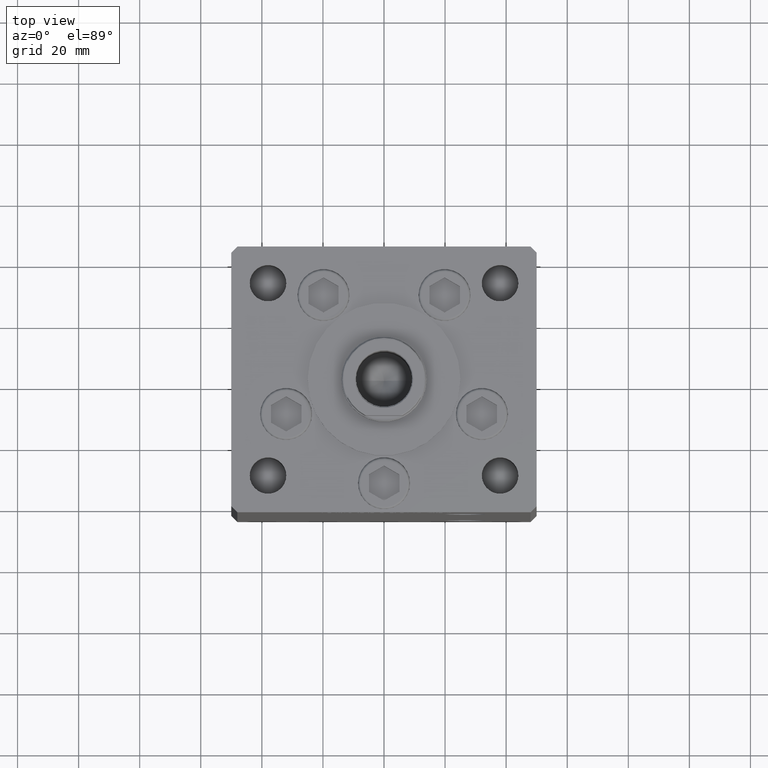
[diagram: clean part render]
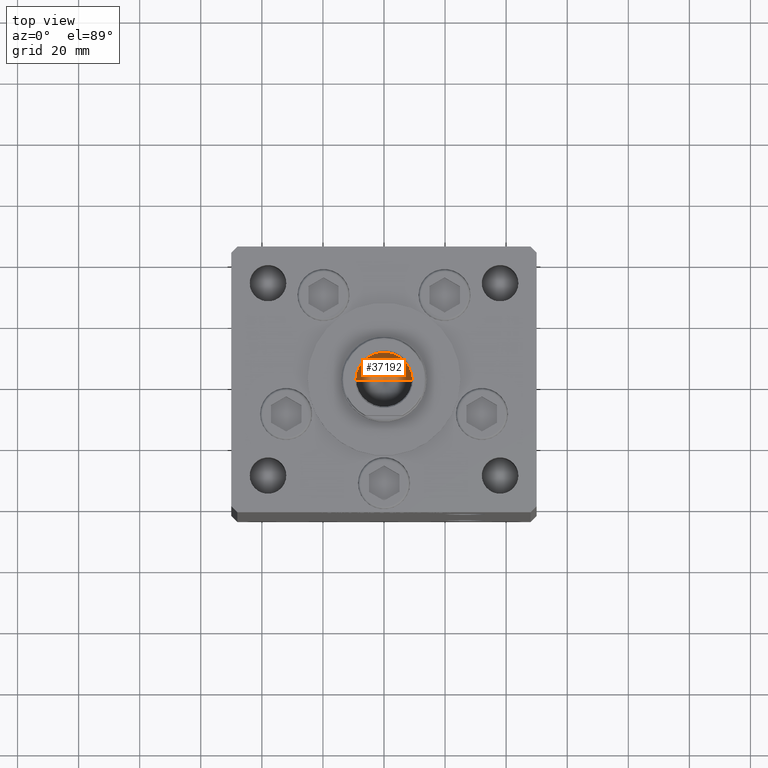
[diagram: same view with one face highlighted and labeled with its STEP entity id]
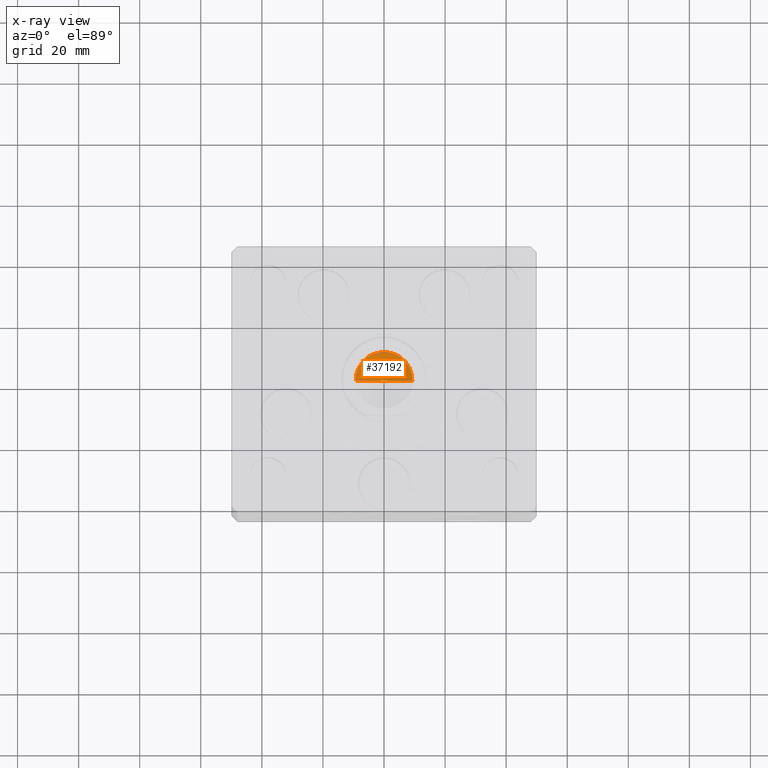
[diagram: x-ray of the same camera — body ghosted, the highlighted face saturated]
A machine part, top view. The second image highlights one B-rep face of the part: STEP entity #37192.
The next image is the same camera in x-ray: the body ghosted, the highlighted face saturated — about 0% of this face is hidden behind the body in this view.
In plain terms, the highlighted conical surface has half-angle 59 deg.
Its self-contained STEP definition (entity closure, byte-faithful):
#1254 = AXIS2_PLACEMENT_3D ( 'NONE', #30803, #46903, #6807 ) ;
#1398 = VECTOR ( 'NONE', #18994, 1000.000000000000000 ) ;
#2072 = EDGE_CURVE ( 'NONE', #51129, #51550, #35446, .T. ) ;
#2920 = CARTESIAN_POINT ( 'NONE',  ( -9.249999999999994671, 1.132798289211300909E-15, 130.2500000000000000 ) ) ;
#4191 = DIRECTION ( 'NONE',  ( 0.8571673007021117785, 0.000000000000000000, 0.5150380749100550437 ) ) ;
#6807 = DIRECTION ( 'NONE',  ( 1.000000000000000000, 0.000000000000000000, 0.000000000000000000 ) ) ;
#14036 = VECTOR ( 'NONE', #4191, 1000.000000000000000 ) ;
#14462 = CARTESIAN_POINT ( 'NONE',  ( 9.249999999999994671, 0.000000000000000000, 130.2500000000000000 ) ) ;
#16362 = EDGE_LOOP ( 'NONE', ( #34625, #16946, #50668 ) ) ;
#16439 = CARTESIAN_POINT ( 'NONE',  ( -1.046994375366439223E-14, 0.000000000000000000, 124.6920392739950643 ) ) ;
#16946 = ORIENTED_EDGE ( 'NONE', *, *, #48994, .T. ) ;
#18994 = DIRECTION ( 'NONE',  ( -0.8571673007021117785, 1.049727191138617956E-16, 0.5150380749100550437 ) ) ;
#19245 = LINE ( 'NONE', #2920, #1398 ) ;
#21470 = CONICAL_SURFACE ( 'NONE', #1254, 9.249999999999994671, 1.029744258676653423 ) ;
#22898 = FACE_OUTER_BOUND ( 'NONE', #16362, .T. ) ;
#24500 = AXIS2_PLACEMENT_3D ( 'NONE', #51179, #39047, #51703 ) ;
#29432 = VERTEX_POINT ( 'NONE', #16439 ) ;
#30803 = CARTESIAN_POINT ( 'NONE',  ( 0.000000000000000000, 0.000000000000000000, 130.2500000000000000 ) ) ;
#32927 = LINE ( 'NONE', #36643, #14036 ) ;
#34625 = ORIENTED_EDGE ( 'NONE', *, *, #47564, .F. ) ;
#35446 = CIRCLE ( 'NONE', #24500, 9.249999999999994671 ) ;
#36643 = CARTESIAN_POINT ( 'NONE',  ( 9.249999999999994671, 0.000000000000000000, 130.2500000000000000 ) ) ;
#37192 = ADVANCED_FACE ( 'NONE', ( #22898 ), #21470, .F. ) ;
#39047 = DIRECTION ( 'NONE',  ( -0.000000000000000000, -0.000000000000000000, 1.000000000000000000 ) ) ;
#40955 = CARTESIAN_POINT ( 'NONE',  ( -9.249999999999994671, 1.132798289211300909E-15, 130.2500000000000000 ) ) ;
#46903 = DIRECTION ( 'NONE',  ( -0.000000000000000000, -0.000000000000000000, 1.000000000000000000 ) ) ;
#47564 = EDGE_CURVE ( 'NONE', #29432, #51550, #19245, .T. ) ;
#48994 = EDGE_CURVE ( 'NONE', #29432, #51129, #32927, .T. ) ;
#50668 = ORIENTED_EDGE ( 'NONE', *, *, #2072, .T. ) ;
#51129 = VERTEX_POINT ( 'NONE', #14462 ) ;
#51179 = CARTESIAN_POINT ( 'NONE',  ( 0.000000000000000000, 0.000000000000000000, 130.2500000000000000 ) ) ;
#51550 = VERTEX_POINT ( 'NONE', #40955 ) ;
#51703 = DIRECTION ( 'NONE',  ( 1.000000000000000000, 0.000000000000000000, 0.000000000000000000 ) ) ;